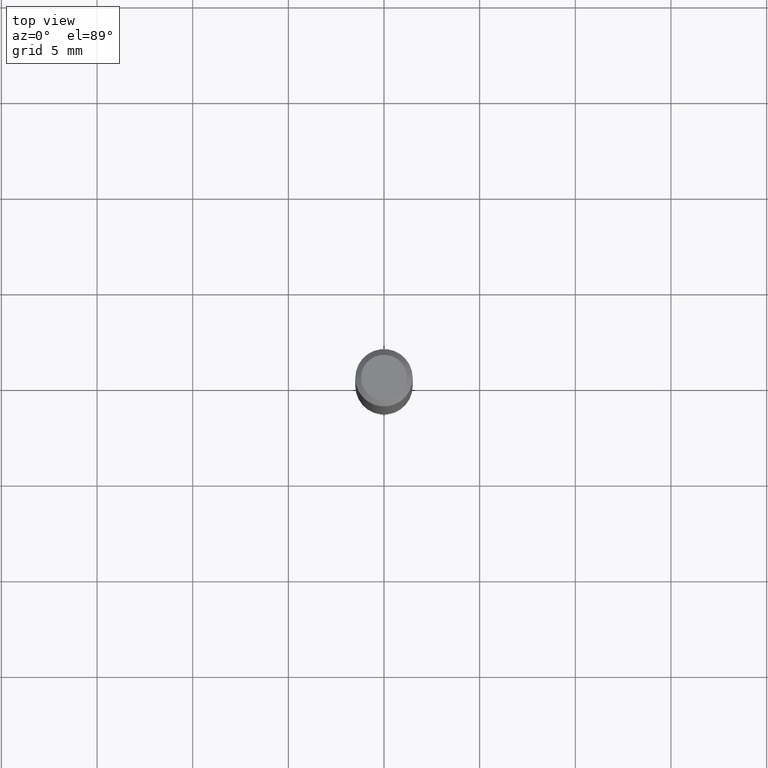
[diagram: clean part render]
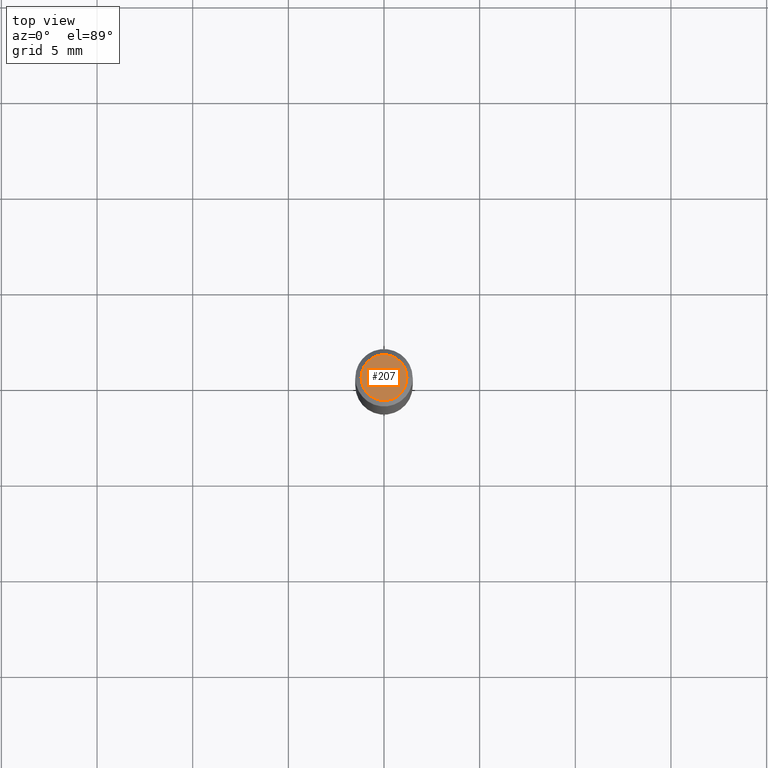
[diagram: same view with one face highlighted and labeled with its STEP entity id]
A machine part, top view. The second image highlights one B-rep face of the part: STEP entity #207.
In plain terms, the highlighted planar face has unit normal (0, -0, -1).
Its self-contained STEP definition (entity closure, byte-faithful):
#9 = EDGE_CURVE ( 'NONE', #418, #61, #223, .T. ) ;
#23 = CARTESIAN_POINT ( 'NONE',  ( 0.04724000000000000421, -3.852183633974369345E-16, -3.380025165621689721E-19 ) ) ;
#61 = VERTEX_POINT ( 'NONE', #23 ) ;
#70 = CARTESIAN_POINT ( 'NONE',  ( 8.265746106709734507E-48, -1.180129479067563789E-33, -3.380025165646692144E-19 ) ) ;
#71 = CIRCLE ( 'NONE', #387, 0.04724000000000000421 ) ;
#75 = CARTESIAN_POINT ( 'NONE',  ( 4.132873053354867254E-48, -5.900647395337818946E-34, -1.690012582823346072E-19 ) ) ;
#110 = DIRECTION ( 'NONE',  ( 2.438088387897960049E-29, -3.491481338843145188E-15, -1.000000000000000000 ) ) ;
#150 = DIRECTION ( 'NONE',  ( 1.000000000000000000, -6.982962677686266711E-15, 4.876185090822587894E-29 ) ) ;
#174 = EDGE_CURVE ( 'NONE', #61, #418, #71, .T. ) ;
#188 = FACE_OUTER_BOUND ( 'NONE', #392, .T. ) ;
#207 = ADVANCED_FACE ( 'NONE', ( #188 ), #384, .F. ) ;
#223 = CIRCLE ( 'NONE', #397, 0.04724000000000000421 ) ;
#224 = DIRECTION ( 'NONE',  ( -1.000000000000000000, 6.982962677686265922E-15, -4.876176775795935793E-29 ) ) ;
#281 = CARTESIAN_POINT ( 'NONE',  ( -0.04724000000000000421, 3.504923541997677355E-16, -3.380025165670481712E-19 ) ) ;
#314 = ORIENTED_EDGE ( 'NONE', *, *, #9, .T. ) ;
#339 = DIRECTION ( 'NONE',  ( 1.000000000000000000, -6.982962677686266711E-15, 4.876185090822587894E-29 ) ) ;
#345 = DIRECTION ( 'NONE',  ( -2.445468806185136597E-29, 3.491481338843145583E-15, 1.000000000000000000 ) ) ;
#375 = ORIENTED_EDGE ( 'NONE', *, *, #174, .T. ) ;
#384 = PLANE ( 'NONE',  #446 ) ;
#387 = AXIS2_PLACEMENT_3D ( 'NONE', #70, #345, #150 ) ;
#392 = EDGE_LOOP ( 'NONE', ( #314, #375 ) ) ;
#397 = AXIS2_PLACEMENT_3D ( 'NONE', #483, #411, #339 ) ;
#411 = DIRECTION ( 'NONE',  ( -2.445468806185136597E-29, 3.491481338843145583E-15, 1.000000000000000000 ) ) ;
#418 = VERTEX_POINT ( 'NONE', #281 ) ;
#446 = AXIS2_PLACEMENT_3D ( 'NONE', #75, #110, #224 ) ;
#483 = CARTESIAN_POINT ( 'NONE',  ( 8.265746106709734507E-48, -1.180129479067563789E-33, -3.380025165646692144E-19 ) ) ;